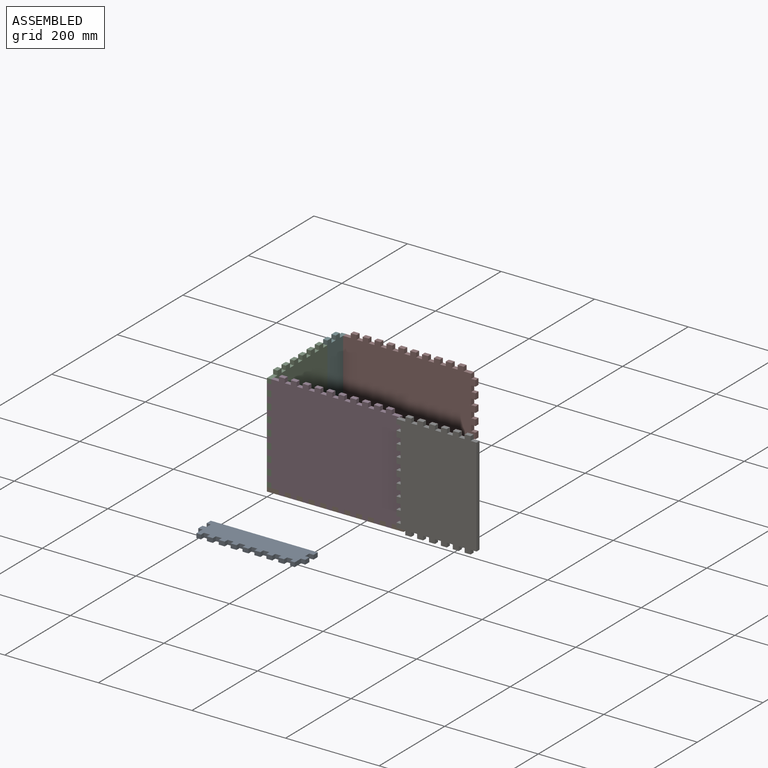
[diagram: assembled view]
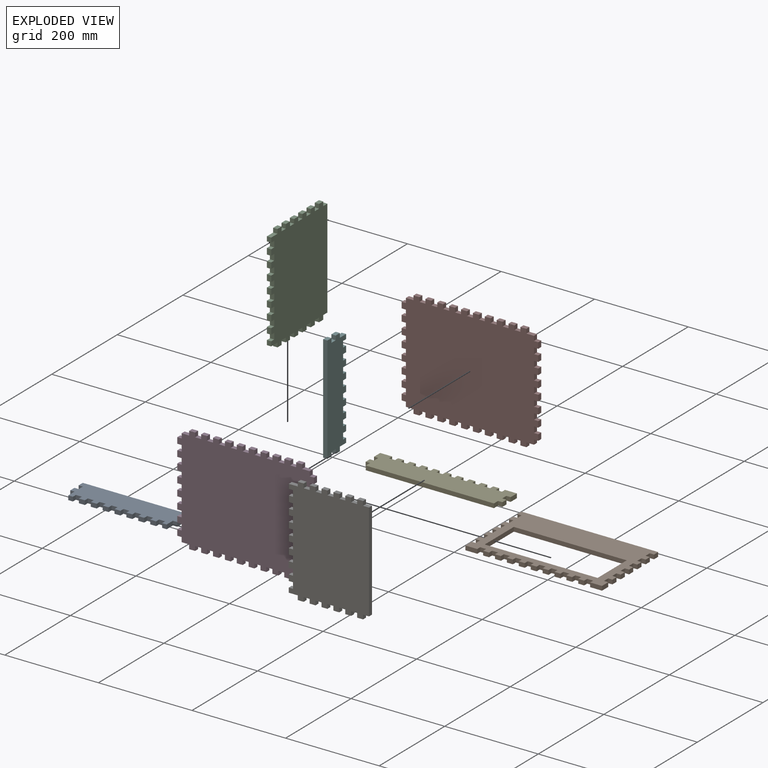
[diagram: exploded view]
GUIDED TOUR — MATED ASSEMBLY (Onshape document 99069a46d3f04be28202510d, AutoMate assembly 99069a46d3f04be28202510d_58bce84e35300e3a982a0659_56edbbd7e1614a08d394e60a_default)

This assembly has 8 components, labeled P0..P7 below (a component is one placed occurrence of a part; the same part can appear more than once), held together by 6 mates. A mate is a constraint between two components; its type names the relative motion it leaves free:
  FASTENED — locks the two components together rigidly (no relative motion).
Axis/direction vectors are unit vectors and 'through' points are millimeter coordinates, both in the assembly's world frame.

MATES
  1. FASTENED "Fastened 1": P4 <-> P1, direction (0.000, 0.000, 1.000) through (282.96, 171.45, 9.14) mm
  2. FASTENED "Fastened 7": P3 <-> P1, direction (0.000, 1.000, 0.000) through (266.70, 9.14, 0.00) mm
  3. FASTENED "Fastened 3": P2 <-> P1, direction (0.000, 0.000, -1.000) through (9.14, 19.05, 9.14) mm
  4. FASTENED "Fastened 5": P5 <-> P7, direction (0.000, 1.000, 0.000) through (9.14, 228.60, 9.14) mm
  5. FASTENED "Fastened 8": P3 <-> P6, direction (0.000, -1.000, 0.000) through (282.96, 0.00, 9.14) mm
  6. FASTENED "Fastened 4": P5 <-> P2, direction (-1.000, 0.000, 0.000) through (0.00, 171.45, 219.46) mm

ASSEMBLY ORDER
  1. P5 — the base component [order verified]
  2. P4 [order verified]
  3. P7 [order verified]
  4. P2 [order verified]
  5. P1 [order verified]
  6. P3 [order verified]
  7. P6 [order verified]
  8. P0 [order verified]
Order-tag legend:
  [order verified] — this step's position reverses a verified removal order: the component was checked to insert without passing through the ones already placed.

Of the 8 components, 2 carry the full construction recipe — the FeatureScript program that regenerates the part's solid from scratch; the rest are supplied as boundary geometry only.
Each toured component is shown spotlighted twice — in the assembled view, then in the exploded view, where a leader line traces a displaced component back to its assembled socket (saturated green if recipe-attached, orange if geometry-only; every other component desaturated gray) — followed by its recipe or geometry summary and the mates that hold it.
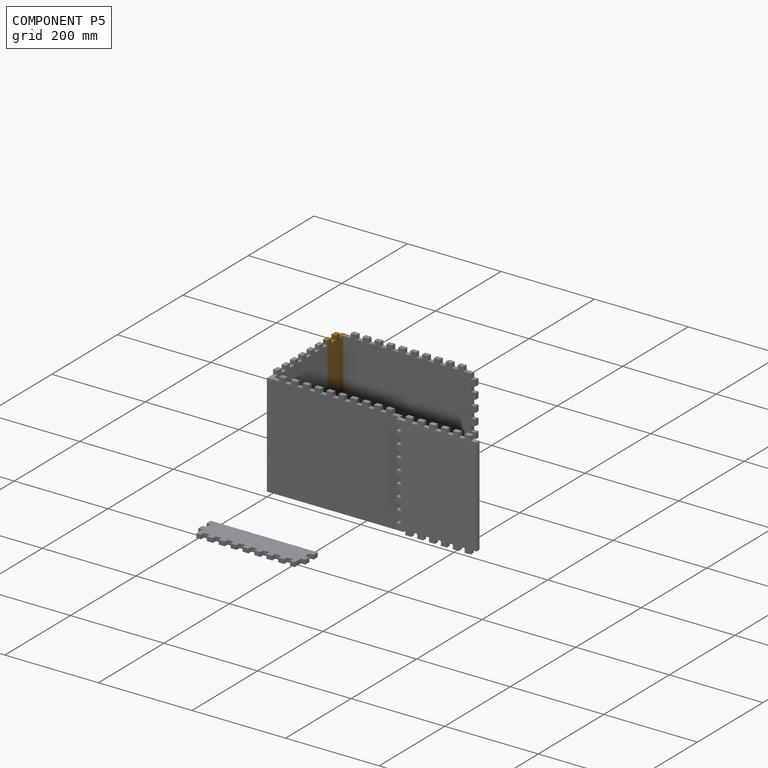
[diagram: component P5 — assembled]
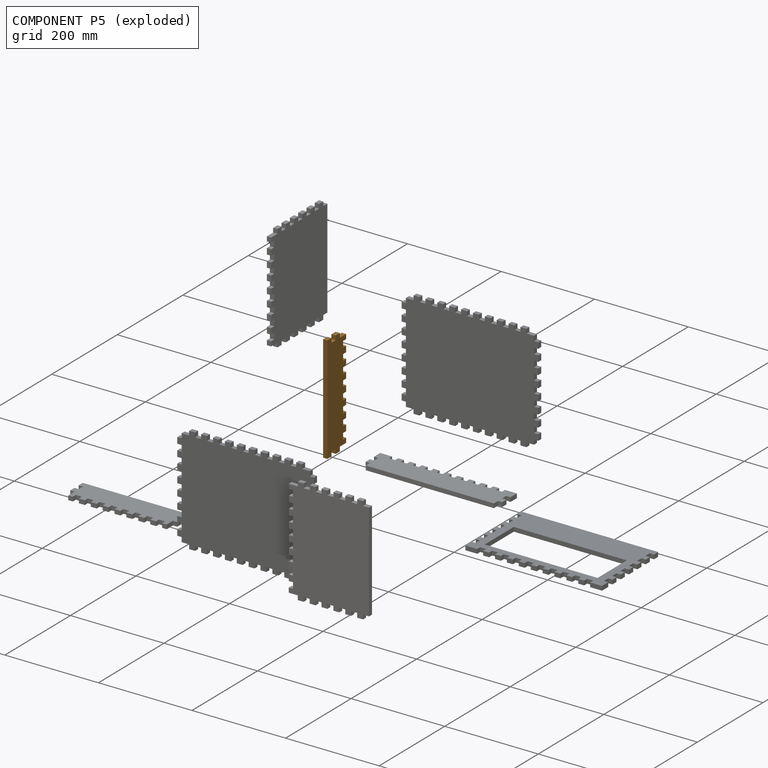
[diagram: component P5 — exploded]
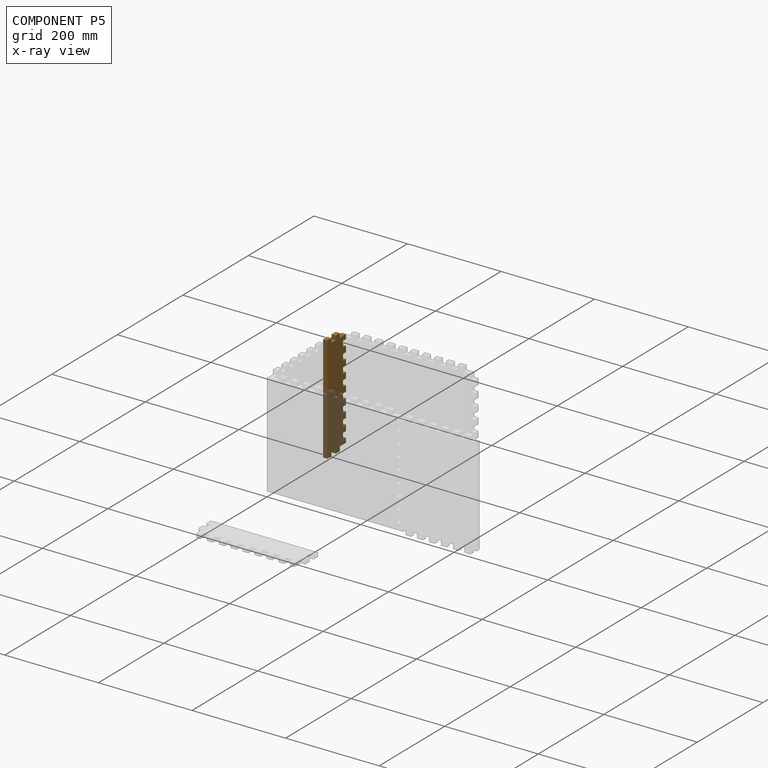
[diagram: component P5 — x-ray view]
COMPONENT P5 — geometry summary (no construction recipe available for this part):
  bounding box: 228.6 x 57.2 x 9.1 mm
  B-rep topology: 1 solid, 52 faces, 300 edges
  volume: 105657 mm^3 (88% of its bounding box)
  symmetry: 2-fold rotationally symmetric about the y axis; mirror-symmetric across its x mid-plane, z mid-plane
Held by: FASTENED mate "Fastened 5" to P7; FASTENED mate "Fastened 4" to P2.
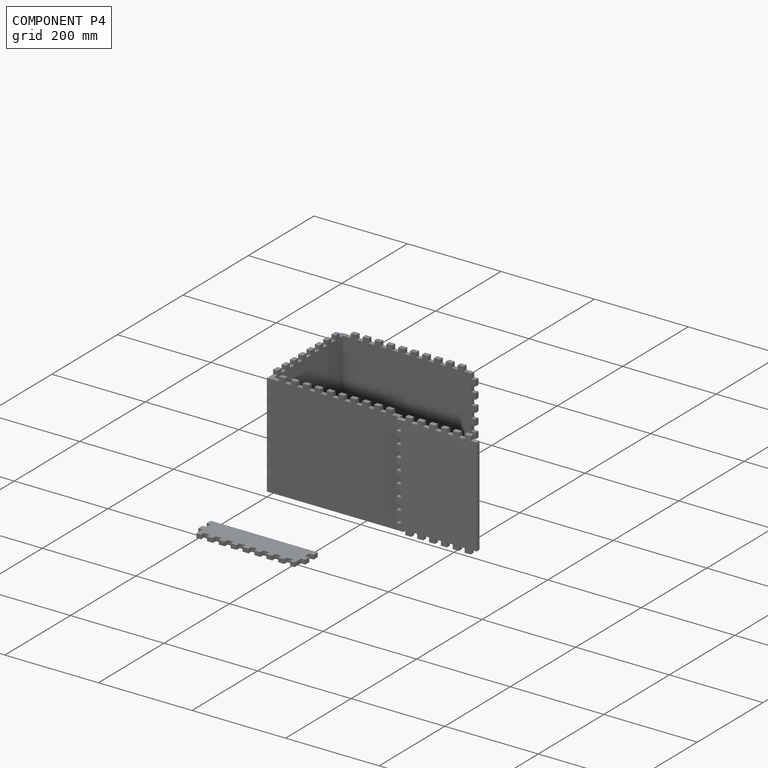
[diagram: component P4 — assembled]
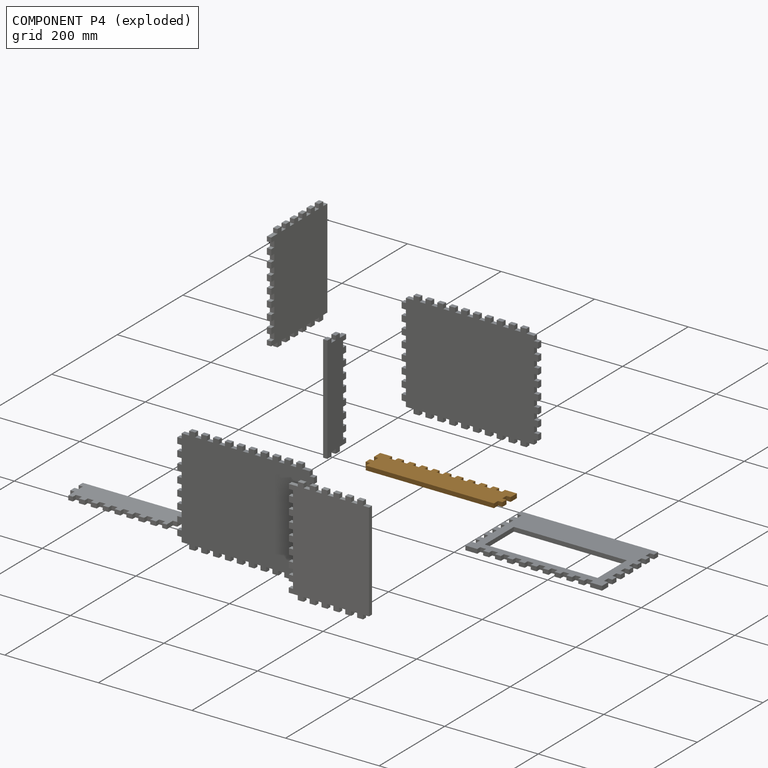
[diagram: component P4 — exploded]
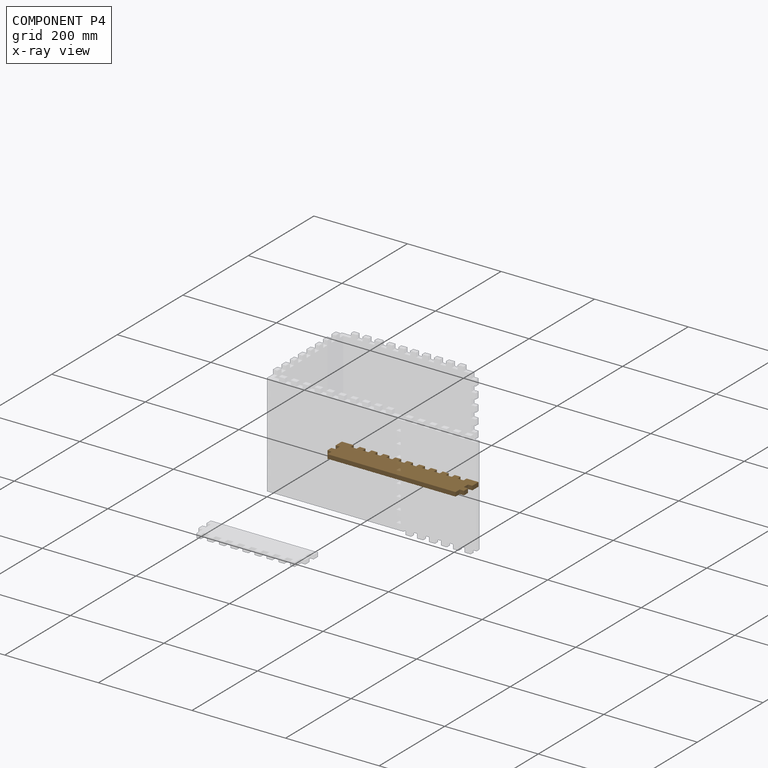
[diagram: component P4 — x-ray view]
COMPONENT P4 — geometry summary (no construction recipe available for this part):
  bounding box: 292.1 x 57.2 x 9.1 mm
  B-rep topology: 1 solid, 58 faces, 336 edges
  volume: 137779 mm^3 (90% of its bounding box)
  symmetry: 2-fold rotationally symmetric about the y axis; mirror-symmetric across its x mid-plane, z mid-plane
Held by: FASTENED mate "Fastened 1" to P1.
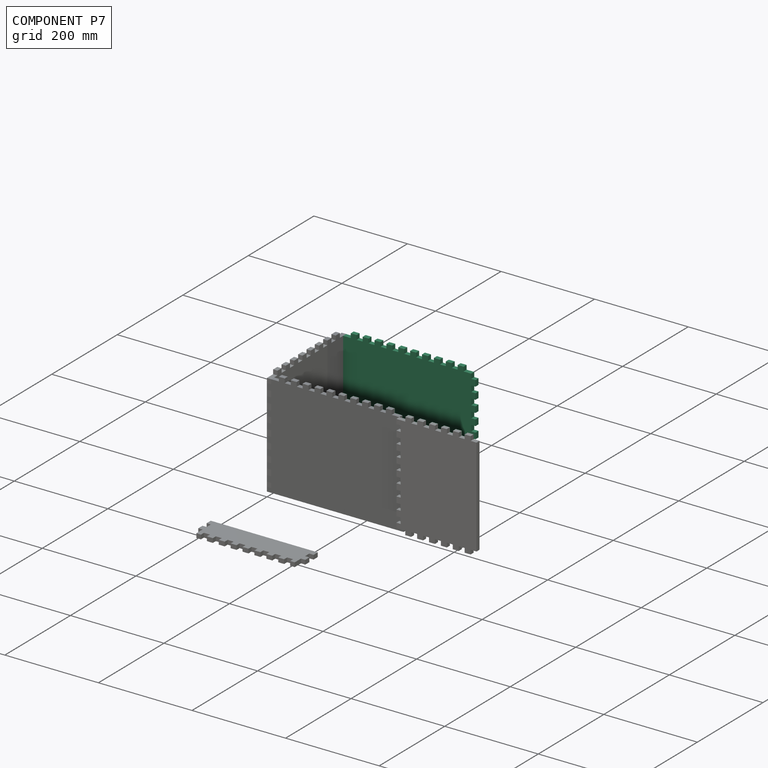
[diagram: component P7 — assembled]
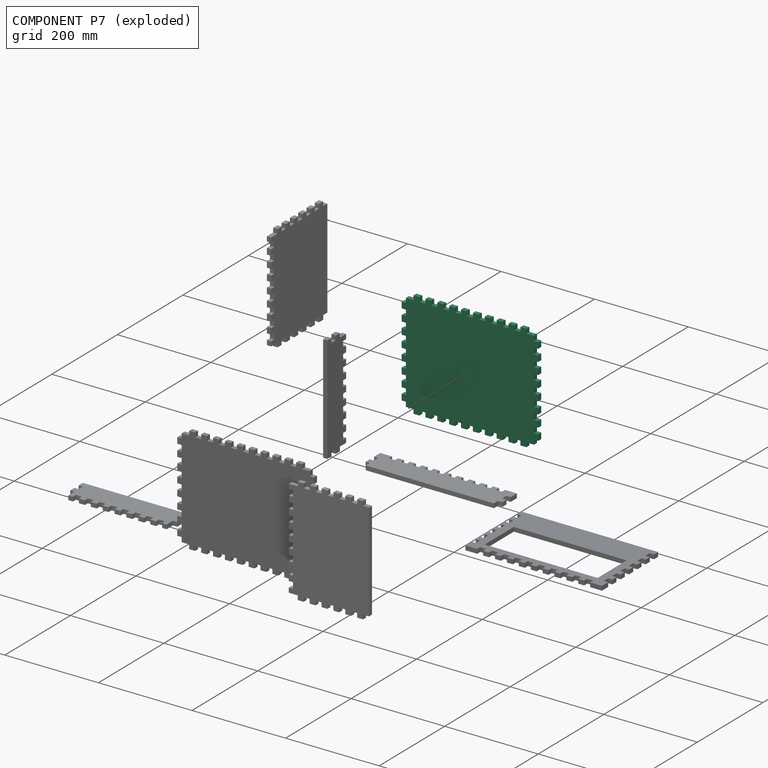
[diagram: component P7 — exploded]
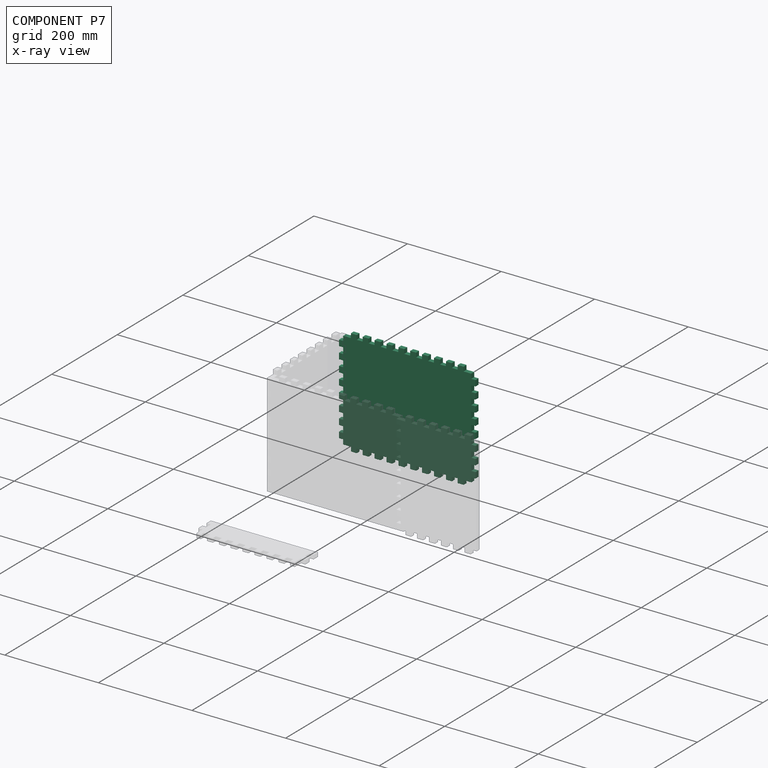
[diagram: component P7 — x-ray view]
COMPONENT P7 — same part as P3 (CADFS 00348971); its construction recipe is shown at P3.
Held by: FASTENED mate "Fastened 5" to P5.
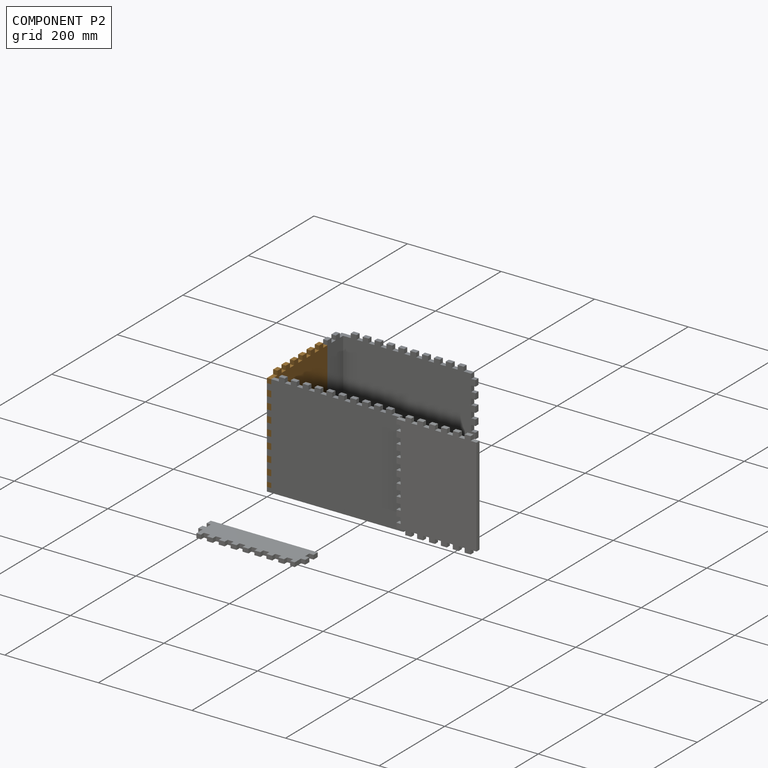
[diagram: component P2 — assembled]
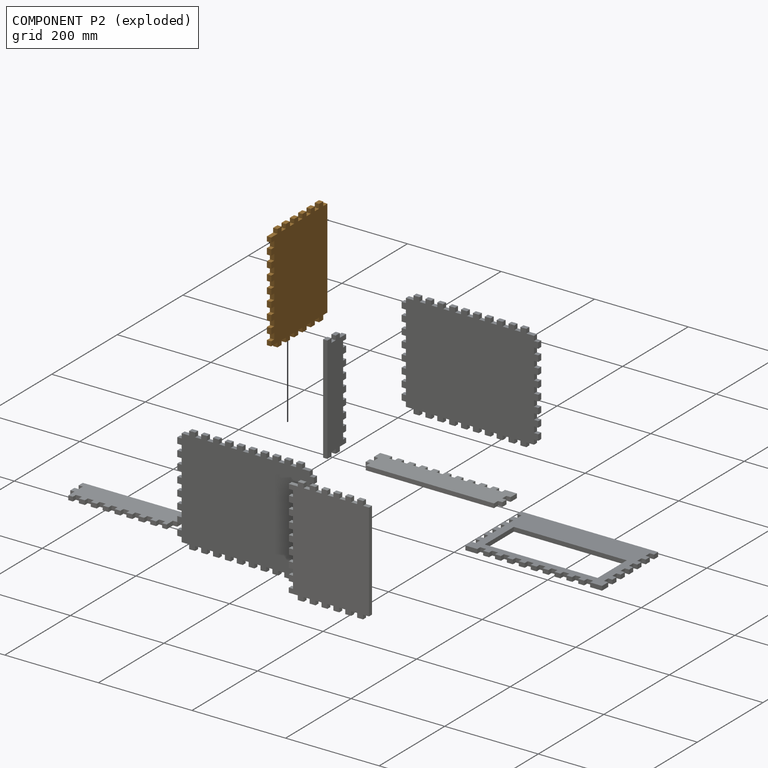
[diagram: component P2 — exploded]
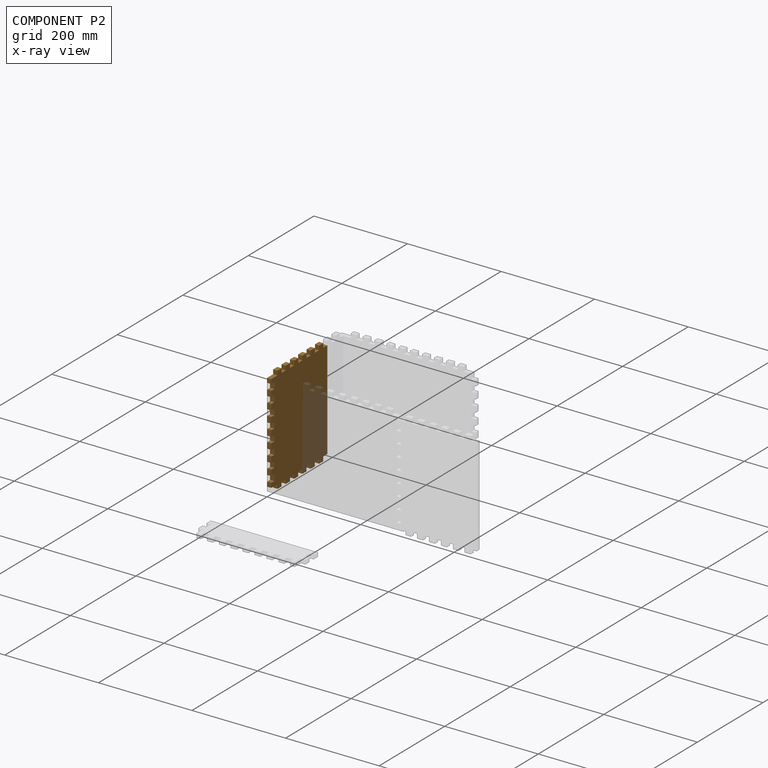
[diagram: component P2 — x-ray view]
COMPONENT P2 — geometry summary (no construction recipe available for this part):
  bounding box: 228.6 x 171.5 x 9.1 mm
  B-rep topology: 1 solid, 86 faces, 504 edges
  volume: 333962 mm^3 (93% of its bounding box)
  symmetry: 2-fold rotationally symmetric about the y axis; mirror-symmetric across its x mid-plane, z mid-plane
Held by: FASTENED mate "Fastened 3" to P1; FASTENED mate "Fastened 4" to P5.
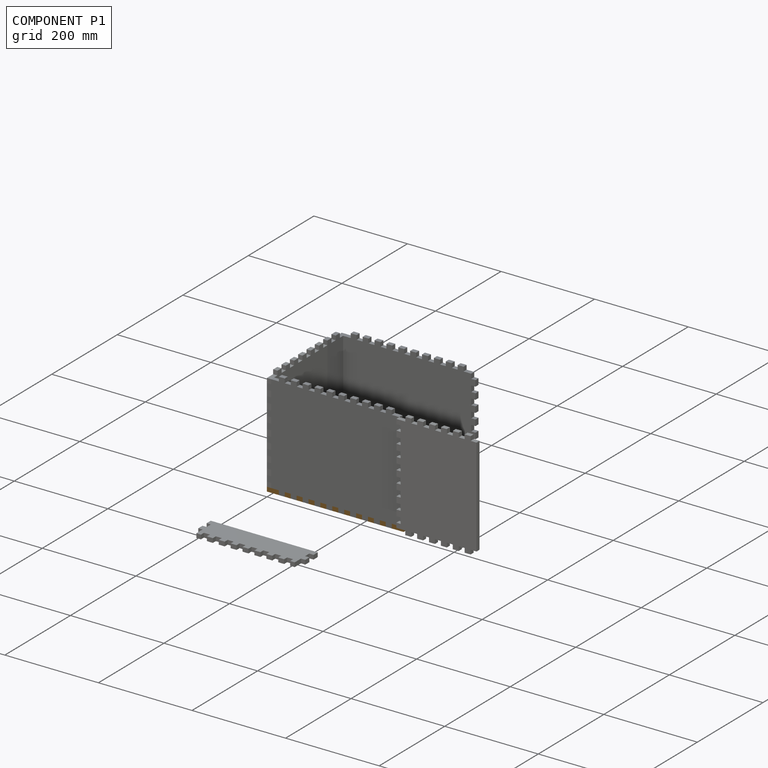
[diagram: component P1 — assembled]
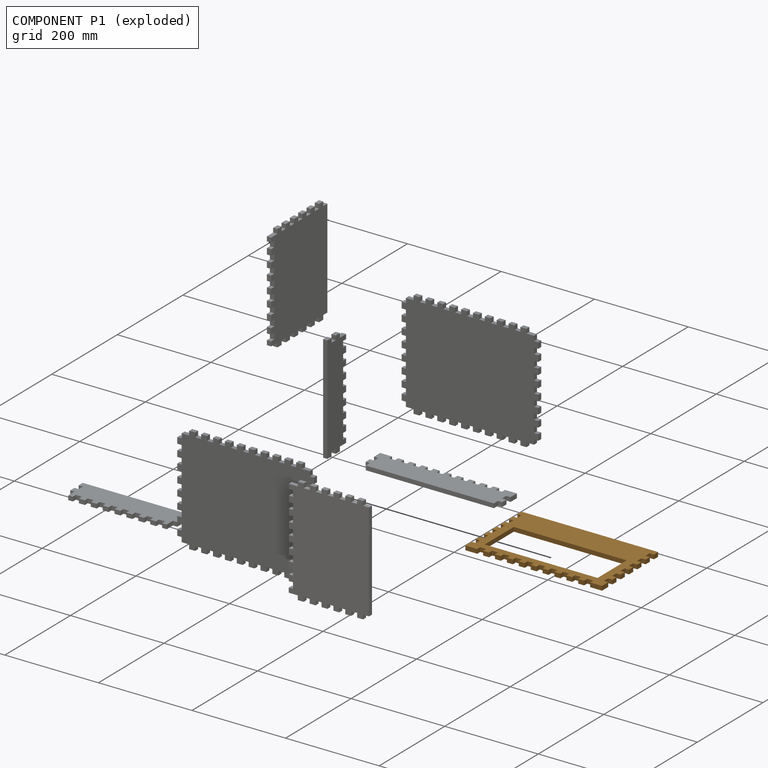
[diagram: component P1 — exploded]
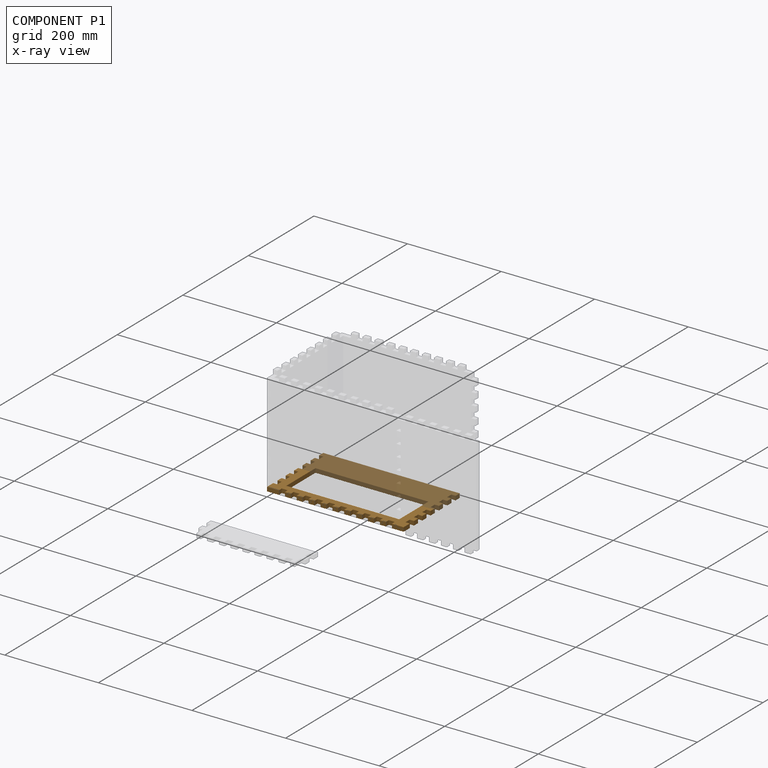
[diagram: component P1 — x-ray view]
COMPONENT P1 — geometry summary (no construction recipe available for this part):
  bounding box: 292.1 x 171.5 x 9.1 mm
  B-rep topology: 1 solid, 98 faces, 576 edges
  volume: 238422 mm^3 (52% of its bounding box)
  symmetry: 2-fold rotationally symmetric about the y axis; mirror-symmetric across its x mid-plane, z mid-plane
Held by: FASTENED mate "Fastened 1" to P4; FASTENED mate "Fastened 7" to P3; FASTENED mate "Fastened 3" to P2.
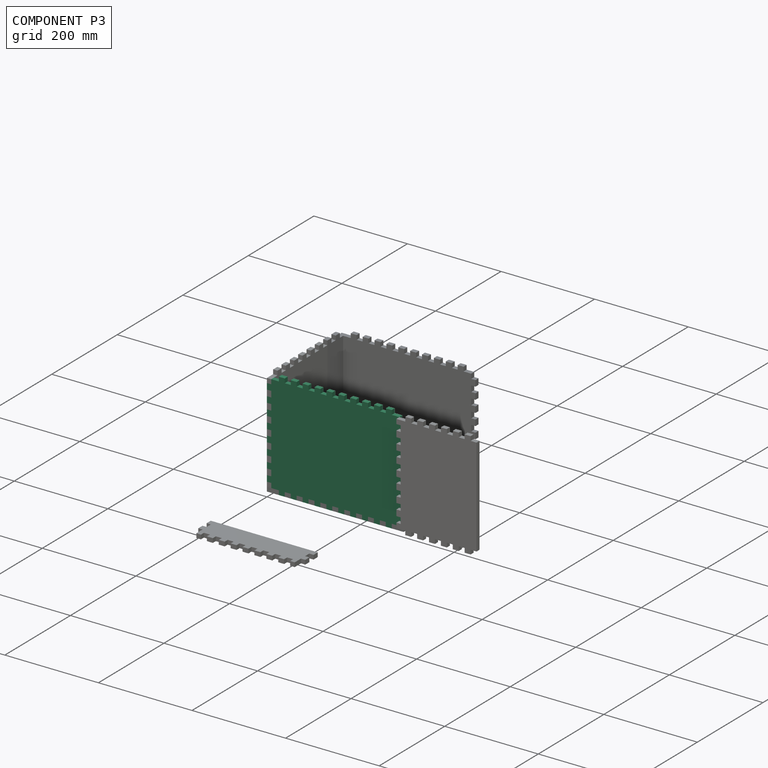
[diagram: component P3 — assembled]
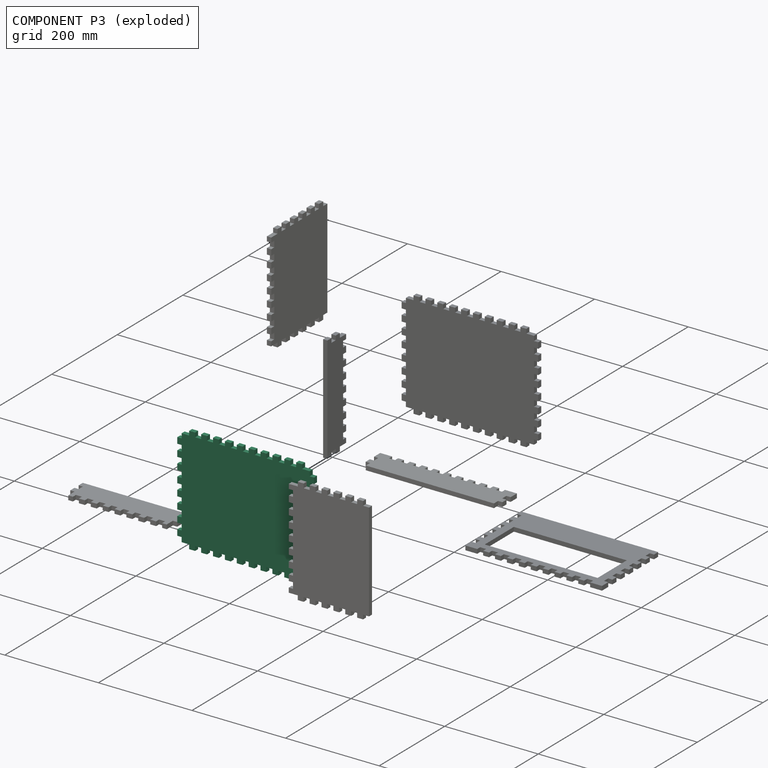
[diagram: component P3 — exploded]
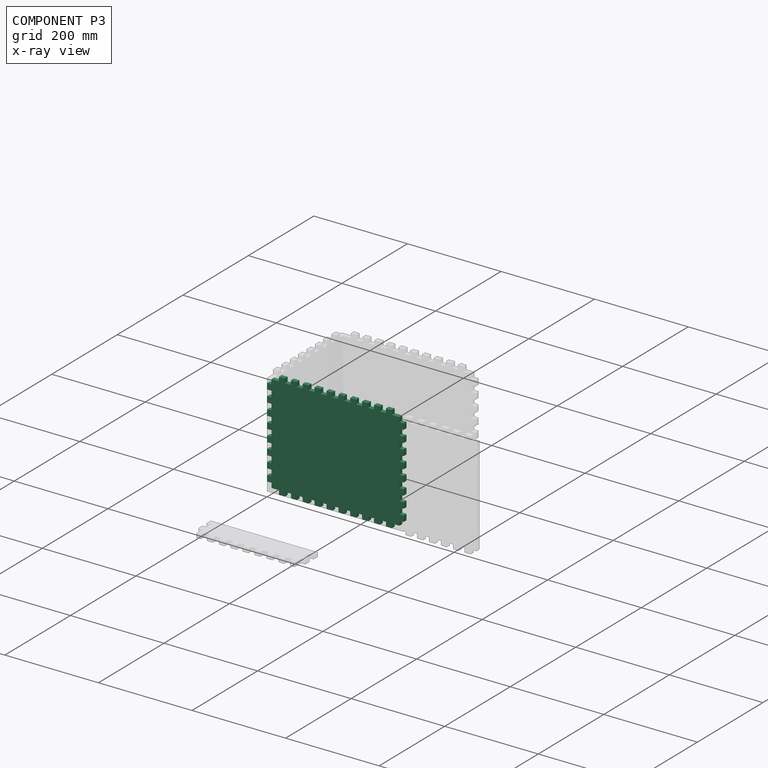
[diagram: component P3 — x-ray view]
COMPONENT P3 — recipe-attached (CADFS 00348971, mesh-verified: the recipe's output STEP matches this component's geometry to below the mesh-comparison resolution (tessellation chordal tolerance ~0.557 mm)).
Held by: FASTENED mate "Fastened 7" to P1; FASTENED mate "Fastened 8" to P6.
Construction recipe (FeatureScript — the CAD program that rebuilds this solid; sketch coordinates are in the units given by the * unit suffixes, e.g. mm):

FeatureScript 1511;
import(path : "onshape/std/geometry.fs", version : "1511.0");
import(path : "onshape/std/common.fs", version : "1511.0");
const mm = millimeter;
const VERTEX = EntityType.VERTEX;
const EDGE = EntityType.EDGE;
const FACE = EntityType.FACE;
const BODY = EntityType.BODY;
function v(x, y){return vector(x, y);}
function OD(order){return orderDisambiguation(order);}
function OSD(set){return originalSetDisambiguation(set);}
function TD(topology){return topologyDisambiguation(topology);}
function TDD(query){return trueDependencyDisambiguation(query);}
function sQuery(a, b, c) {return sketchEntityQuery(a, b, c);}

annotation { "Feature Type Name" : "Feature", "Feature Type Description" : "" }
export const myFeature = defineFeature(function(context is Context, id is Id, definition is map)
    precondition{}
    {
        {
            var Q0;
            Q0=qCreatedBy(makeId("Top.planeOp"),FACE);
            var sketch = newSketch(context, id + "F0", { "sketchPlane" : qUnion([Q0])});
            skLineSegment(sketch, "E0.bottom", {"start": v(0, 0) * mm, "end": v(25.4, 0) * mm, "construction": true});
            skLineSegment(sketch, "E1.bottom", {"start": v(9.14, -9.14) * mm, "end": v(25.4, -9.14) * mm});
            skLineSegment(sketch, "E1.left", {"start": v(9.14, -9.14) * mm, "end": v(9.14, -19.05) * mm});
            skLineSegment(sketch, "E2", {"start": v(9.14, -19.05) * mm, "end": v(0, -19.05) * mm});
            skLineSegment(sketch, "E3", {"start": v(25.4, -9.14) * mm, "end": v(25.4, 0) * mm});
            skLineSegment(sketch, "E4", {"start": v(38.1, 0) * mm, "end": v(38.1, -9.14) * mm});
            skLineSegment(sketch, "E5.0", {"start": v(50.8, 0) * mm, "end": v(50.8, -9.14) * mm});
            skLineSegment(sketch, "E6.0", {"start": v(63.5, 0) * mm, "end": v(63.5, -9.14) * mm});
            skLineSegment(sketch, "E7.0", {"start": v(76.2, 0) * mm, "end": v(76.2, -9.14) * mm});
            skLineSegment(sketch, "E8.0", {"start": v(88.9, 0) * mm, "end": v(88.9, -9.14) * mm});
            skLineSegment(sketch, "E9.0", {"start": v(101.6, 0) * mm, "end": v(101.6, -9.14) * mm});
            skLineSegment(sketch, "E10.0", {"start": v(114.3, 0) * mm, "end": v(114.3, -9.14) * mm});
            skLineSegment(sketch, "E11.0", {"start": v(127, 0) * mm, "end": v(127, -9.14) * mm});
            skLineSegment(sketch, "E12.0", {"start": v(139.7, 0) * mm, "end": v(139.7, -9.14) * mm});
            skLineSegment(sketch, "E13.trimOffspring", {"start": v(50.8, 0) * mm, "end": v(63.5, 0) * mm});
            skLineSegment(sketch, "E14.trimOffspring", {"start": v(63.5, -9.14) * mm, "end": v(76.2, -9.14) * mm});
            skLineSegment(sketch, "E15.trimOffspring", {"start": v(76.2, 0) * mm, "end": v(88.9, 0) * mm});
            skLineSegment(sketch, "E16.trimOffspring", {"start": v(88.9, -9.14) * mm, "end": v(101.6, -9.14) * mm});
            skLineSegment(sketch, "E17.trimOffspring", {"start": v(101.6, 0) * mm, "end": v(114.3, 0) * mm});
            skLineSegment(sketch, "E18.trimOffspring", {"start": v(114.3, -9.14) * mm, "end": v(127, -9.14) * mm});
            skLineSegment(sketch, "E19.trimOffspring", {"start": v(127, 0) * mm, "end": v(139.7, 0) * mm});
            skLineSegment(sketch, "E20.trimOffspring", {"start": v(139.7, -9.14) * mm, "end": v(146.05, -9.14) * mm});
            skLineSegment(sketch, "E21.trimOffspring", {"start": v(38.1, -9.14) * mm, "end": v(50.8, -9.14) * mm});
            skLineSegment(sketch, "E22", {"start": v(0, -31.75) * mm, "end": v(9.14, -31.75) * mm});
            skLineSegment(sketch, "E23", {"start": v(9.14, -31.75) * mm, "end": v(9.14, -44.45) * mm});
            skLineSegment(sketch, "E24", {"start": v(9.14, -44.45) * mm, "end": v(0, -44.45) * mm});
            skLineSegment(sketch, "E25.0", {"start": v(9.14, -57.15) * mm, "end": v(0, -57.15) * mm});
            skLineSegment(sketch, "E26.0", {"start": v(9.14, -69.85) * mm, "end": v(0, -69.85) * mm});
            skLineSegment(sketch, "E27.0", {"start": v(9.14, -82.55) * mm, "end": v(0, -82.55) * mm});
            skLineSegment(sketch, "E28.0", {"start": v(9.14, -95.25) * mm, "end": v(0, -95.25) * mm});
            skLineSegment(sketch, "E29.0", {"start": v(9.14, -107.95) * mm, "end": v(0, -107.95) * mm});
            skLineSegment(sketch, "E30.trimOffspring", {"start": v(0, -44.45) * mm, "end": v(0, -57.15) * mm});
            skLineSegment(sketch, "E31.trimOffspring", {"start": v(9.14, -57.15) * mm, "end": v(9.14, -69.85) * mm});
            skLineSegment(sketch, "E32.trimOffspring", {"start": v(0, -69.85) * mm, "end": v(0, -82.55) * mm});
            skLineSegment(sketch, "E33.trimOffspring", {"start": v(9.14, -82.55) * mm, "end": v(9.14, -95.25) * mm});
            skLineSegment(sketch, "E34.trimOffspring", {"start": v(0, -95.25) * mm, "end": v(0, -107.95) * mm});
            skLineSegment(sketch, "E35.trimOffspring", {"start": v(9.14, -107.95) * mm, "end": v(9.14, -114.3) * mm});
            skLineSegment(sketch, "E36", {"start": v(0, 0) * mm, "end": v(0, -19.05) * mm, "construction": true});
            skLineSegment(sketch, "E37", {"start": v(0, -19.05) * mm, "end": v(0, -31.75) * mm});
            skLineSegment(sketch, "E38", {"start": v(25.4, 0) * mm, "end": v(38.1, 0) * mm});
            skLineSegment(sketch, "E39", {"start": v(146.05, -9.14) * mm, "end": v(146.05, -114.3) * mm, "construction": true});
            skLineSegment(sketch, "E40", {"start": v(9.14, -114.3) * mm, "end": v(146.05, -114.3) * mm, "construction": true});
            skLineSegment(sketch, "E41.MirrorCS", {"start": v(9.14, -120.65) * mm, "end": v(9.14, -114.3) * mm});
            skLineSegment(sketch, "E42.MirrorCS", {"start": v(9.14, -120.65) * mm, "end": v(0, -120.65) * mm});
            skLineSegment(sketch, "E43.MirrorCS", {"start": v(0, -133.35) * mm, "end": v(0, -120.65) * mm});
            skLineSegment(sketch, "E44.MirrorCS", {"start": v(9.14, -133.35) * mm, "end": v(0, -133.35) * mm});
            skLineSegment(sketch, "E45.MirrorCS", {"start": v(9.14, -146.05) * mm, "end": v(9.14, -133.35) * mm});
            skLineSegment(sketch, "E46.MirrorCS", {"start": v(9.14, -146.05) * mm, "end": v(0, -146.05) * mm});
            skLineSegment(sketch, "E47.MirrorCS", {"start": v(0, -158.75) * mm, "end": v(0, -146.05) * mm});
            skLineSegment(sketch, "E48.MirrorCS", {"start": v(9.14, -158.75) * mm, "end": v(0, -158.75) * mm});
            skLineSegment(sketch, "E49.MirrorCS", {"start": v(9.14, -171.45) * mm, "end": v(9.14, -158.75) * mm});
            skLineSegment(sketch, "E50.MirrorCS", {"start": v(9.14, -171.45) * mm, "end": v(0, -171.45) * mm});
            skLineSegment(sketch, "E51.MirrorCS", {"start": v(0, -184.15) * mm, "end": v(0, -171.45) * mm});
            skLineSegment(sketch, "E52.MirrorCS", {"start": v(9.14, -184.15) * mm, "end": v(0, -184.15) * mm});
            skLineSegment(sketch, "E53.MirrorCS", {"start": v(9.14, -196.85) * mm, "end": v(9.14, -184.15) * mm});
            skLineSegment(sketch, "E54.MirrorCS", {"start": v(0, -196.85) * mm, "end": v(9.14, -196.85) * mm});
            skLineSegment(sketch, "E55.MirrorCS", {"start": v(0, -209.55) * mm, "end": v(0, -196.85) * mm});
            skLineSegment(sketch, "E56.MirrorCS", {"start": v(9.14, -209.55) * mm, "end": v(0, -209.55) * mm});
            skLineSegment(sketch, "E57.MirrorCS", {"start": v(9.14, -219.46) * mm, "end": v(9.14, -209.55) * mm});
            skLineSegment(sketch, "E58.MirrorCS", {"start": v(9.14, -219.46) * mm, "end": v(25.4, -219.46) * mm});
            skLineSegment(sketch, "E59.MirrorCS", {"start": v(25.4, -219.46) * mm, "end": v(25.4, -228.6) * mm});
            skLineSegment(sketch, "E60.MirrorCS", {"start": v(25.4, -228.6) * mm, "end": v(38.1, -228.6) * mm});
            skLineSegment(sketch, "E61.MirrorCS", {"start": v(38.1, -228.6) * mm, "end": v(38.1, -219.46) * mm});
            skLineSegment(sketch, "E62.MirrorCS", {"start": v(38.1, -219.46) * mm, "end": v(50.8, -219.46) * mm});
            skLineSegment(sketch, "E63.MirrorCS", {"start": v(50.8, -228.6) * mm, "end": v(50.8, -219.46) * mm});
            skLineSegment(sketch, "E64.MirrorCS", {"start": v(50.8, -228.6) * mm, "end": v(63.5, -228.6) * mm});
            skLineSegment(sketch, "E65.MirrorCS", {"start": v(63.5, -228.6) * mm, "end": v(63.5, -219.46) * mm});
            skLineSegment(sketch, "E66.MirrorCS", {"start": v(63.5, -219.46) * mm, "end": v(76.2, -219.46) * mm});
            skLineSegment(sketch, "E67.MirrorCS", {"start": v(76.2, -228.6) * mm, "end": v(76.2, -219.46) * mm});
            skLineSegment(sketch, "E68.MirrorCS", {"start": v(76.2, -228.6) * mm, "end": v(88.9, -228.6) * mm});
            skLineSegment(sketch, "E69.MirrorCS", {"start": v(88.9, -228.6) * mm, "end": v(88.9, -219.46) * mm});
            skLineSegment(sketch, "E70.MirrorCS", {"start": v(88.9, -219.46) * mm, "end": v(101.6, -219.46) * mm});
            skLineSegment(sketch, "E71.MirrorCS", {"start": v(101.6, -228.6) * mm, "end": v(101.6, -219.46) * mm});
            skLineSegment(sketch, "E72.MirrorCS", {"start": v(101.6, -228.6) * mm, "end": v(114.3, -228.6) * mm});
            skLineSegment(sketch, "E73.MirrorCS", {"start": v(114.3, -219.46) * mm, "end": v(127, -219.46) * mm});
            skLineSegment(sketch, "E74.MirrorCS", {"start": v(127, -228.6) * mm, "end": v(127, -219.46) * mm});
            skLineSegment(sketch, "E75.MirrorCS", {"start": v(127, -228.6) * mm, "end": v(139.7, -228.6) * mm});
            skLineSegment(sketch, "E76.MirrorCS", {"start": v(139.7, -228.6) * mm, "end": v(139.7, -219.46) * mm});
            skLineSegment(sketch, "E77.MirrorCS", {"start": v(139.7, -219.46) * mm, "end": v(146.05, -219.46) * mm});
            skLineSegment(sketch, "E78.MirrorCS", {"start": v(114.3, -228.6) * mm, "end": v(114.3, -219.46) * mm});
            skLineSegment(sketch, "E79.MirrorCS", {"start": v(152.4, -9.14) * mm, "end": v(146.05, -9.14) * mm});
            skLineSegment(sketch, "E80.MirrorCS", {"start": v(152.4, 0) * mm, "end": v(152.4, -9.14) * mm});
            skLineSegment(sketch, "E81.MirrorCS", {"start": v(165.1, 0) * mm, "end": v(152.4, 0) * mm});
            skLineSegment(sketch, "E82.MirrorCS", {"start": v(165.1, 0) * mm, "end": v(165.1, -9.14) * mm});
            skLineSegment(sketch, "E83.MirrorCS", {"start": v(177.8, -9.14) * mm, "end": v(165.1, -9.14) * mm});
            skLineSegment(sketch, "E84.MirrorCS", {"start": v(177.8, 0) * mm, "end": v(177.8, -9.14) * mm});
            skLineSegment(sketch, "E85.MirrorCS", {"start": v(190.5, 0) * mm, "end": v(177.8, 0) * mm});
            skLineSegment(sketch, "E86.MirrorCS", {"start": v(190.5, 0) * mm, "end": v(190.5, -9.14) * mm});
            skLineSegment(sketch, "E87.MirrorCS", {"start": v(203.2, -9.14) * mm, "end": v(190.5, -9.14) * mm});
            skLineSegment(sketch, "E88.MirrorCS", {"start": v(203.2, 0) * mm, "end": v(203.2, -9.14) * mm});
            skLineSegment(sketch, "E89.MirrorCS", {"start": v(215.9, 0) * mm, "end": v(203.2, 0) * mm});
            skLineSegment(sketch, "E90.MirrorCS", {"start": v(215.9, 0) * mm, "end": v(215.9, -9.14) * mm});
            skLineSegment(sketch, "E91.MirrorCS", {"start": v(228.6, -9.14) * mm, "end": v(215.9, -9.14) * mm});
            skLineSegment(sketch, "E92.MirrorCS", {"start": v(228.6, 0) * mm, "end": v(228.6, -9.14) * mm});
            skLineSegment(sketch, "E93.MirrorCS", {"start": v(241.3, 0) * mm, "end": v(228.6, 0) * mm});
            skLineSegment(sketch, "E94.MirrorCS", {"start": v(241.3, 0) * mm, "end": v(241.3, -9.14) * mm});
            skLineSegment(sketch, "E95.MirrorCS", {"start": v(254, -9.14) * mm, "end": v(241.3, -9.14) * mm});
            skLineSegment(sketch, "E96.MirrorCS", {"start": v(254, 0) * mm, "end": v(254, -9.14) * mm});
            skLineSegment(sketch, "E97.MirrorCS", {"start": v(266.7, 0) * mm, "end": v(254, 0) * mm});
            skLineSegment(sketch, "E98.MirrorCS", {"start": v(266.7, -9.14) * mm, "end": v(266.7, 0) * mm});
            skLineSegment(sketch, "E99.MirrorCS", {"start": v(282.96, -9.14) * mm, "end": v(266.7, -9.14) * mm});
            skLineSegment(sketch, "E100.MirrorCS", {"start": v(282.96, -31.75) * mm, "end": v(282.96, -44.45) * mm});
            skLineSegment(sketch, "E101.MirrorCS", {"start": v(282.96, -107.95) * mm, "end": v(282.96, -114.3) * mm});
            skLineSegment(sketch, "E102.MirrorCS", {"start": v(282.96, -120.65) * mm, "end": v(282.96, -114.3) * mm});
            skLineSegment(sketch, "E103.MirrorCS", {"start": v(292.1, -95.25) * mm, "end": v(292.1, -107.95) * mm});
            skLineSegment(sketch, "E104.MirrorCS", {"start": v(282.96, -171.45) * mm, "end": v(282.96, -158.75) * mm});
            skLineSegment(sketch, "E105.MirrorCS", {"start": v(282.96, -209.55) * mm, "end": v(292.1, -209.55) * mm});
            skLineSegment(sketch, "E106.MirrorCS", {"start": v(282.96, -57.15) * mm, "end": v(292.1, -57.15) * mm});
            skLineSegment(sketch, "E107.MirrorCS", {"start": v(282.96, -196.85) * mm, "end": v(282.96, -184.15) * mm});
            skLineSegment(sketch, "E108.MirrorCS", {"start": v(292.1, -31.75) * mm, "end": v(282.96, -31.75) * mm});
            skLineSegment(sketch, "E109.MirrorCS", {"start": v(292.1, -44.45) * mm, "end": v(292.1, -57.15) * mm});
            skLineSegment(sketch, "E110.MirrorCS", {"start": v(282.96, -82.55) * mm, "end": v(292.1, -82.55) * mm});
            skLineSegment(sketch, "E111.MirrorCS", {"start": v(282.96, -44.45) * mm, "end": v(292.1, -44.45) * mm});
            skLineSegment(sketch, "E112.MirrorCS", {"start": v(292.1, -133.35) * mm, "end": v(292.1, -120.65) * mm});
            skLineSegment(sketch, "E113.MirrorCS", {"start": v(282.96, -146.05) * mm, "end": v(282.96, -133.35) * mm});
            skLineSegment(sketch, "E114.MirrorCS", {"start": v(282.96, -19.05) * mm, "end": v(292.1, -19.05) * mm});
            skLineSegment(sketch, "E115.MirrorCS", {"start": v(282.96, -95.25) * mm, "end": v(292.1, -95.25) * mm});
            skLineSegment(sketch, "E116.MirrorCS", {"start": v(292.1, -196.85) * mm, "end": v(282.96, -196.85) * mm});
            skLineSegment(sketch, "E117.MirrorCS", {"start": v(292.1, -158.75) * mm, "end": v(292.1, -146.05) * mm});
            skLineSegment(sketch, "E118.MirrorCS", {"start": v(282.96, -107.95) * mm, "end": v(292.1, -107.95) * mm});
            skLineSegment(sketch, "E119.MirrorCS", {"start": v(282.96, -69.85) * mm, "end": v(292.1, -69.85) * mm});
            skLineSegment(sketch, "E120.MirrorCS", {"start": v(292.1, -184.15) * mm, "end": v(292.1, -171.45) * mm});
            skLineSegment(sketch, "E121.MirrorCS", {"start": v(282.96, -184.15) * mm, "end": v(292.1, -184.15) * mm});
            skLineSegment(sketch, "E122.MirrorCS", {"start": v(292.1, -69.85) * mm, "end": v(292.1, -82.55) * mm});
            skLineSegment(sketch, "E123.MirrorCS", {"start": v(282.96, -158.75) * mm, "end": v(292.1, -158.75) * mm});
            skLineSegment(sketch, "E124.MirrorCS", {"start": v(282.96, -120.65) * mm, "end": v(292.1, -120.65) * mm});
            skLineSegment(sketch, "E125.MirrorCS", {"start": v(282.96, -146.05) * mm, "end": v(292.1, -146.05) * mm});
            skLineSegment(sketch, "E126.MirrorCS", {"start": v(292.1, -19.05) * mm, "end": v(292.1, -31.75) * mm});
            skLineSegment(sketch, "E127.MirrorCS", {"start": v(282.96, -171.45) * mm, "end": v(292.1, -171.45) * mm});
            skLineSegment(sketch, "E128.MirrorCS", {"start": v(282.96, -82.55) * mm, "end": v(282.96, -95.25) * mm});
            skLineSegment(sketch, "E129.MirrorCS", {"start": v(292.1, -209.55) * mm, "end": v(292.1, -196.85) * mm});
            skLineSegment(sketch, "E130.MirrorCS", {"start": v(282.96, -133.35) * mm, "end": v(292.1, -133.35) * mm});
            skLineSegment(sketch, "E131.MirrorCS", {"start": v(282.96, -57.15) * mm, "end": v(282.96, -69.85) * mm});
            skLineSegment(sketch, "E132", {"start": v(282.96, -9.14) * mm, "end": v(282.96, -19.05) * mm});
            skLineSegment(sketch, "E133.MirrorCS", {"start": v(254, -228.6) * mm, "end": v(254, -219.46) * mm});
            skLineSegment(sketch, "E134.MirrorCS", {"start": v(190.5, -228.6) * mm, "end": v(190.5, -219.46) * mm});
            skLineSegment(sketch, "E135.MirrorCS", {"start": v(241.3, -228.6) * mm, "end": v(241.3, -219.46) * mm});
            skLineSegment(sketch, "E136.MirrorCS", {"start": v(177.8, -228.6) * mm, "end": v(177.8, -219.46) * mm});
            skLineSegment(sketch, "E137.MirrorCS", {"start": v(215.9, -228.6) * mm, "end": v(203.2, -228.6) * mm});
            skLineSegment(sketch, "E138.MirrorCS", {"start": v(190.5, -228.6) * mm, "end": v(177.8, -228.6) * mm});
            skLineSegment(sketch, "E139.MirrorCS", {"start": v(203.2, -228.6) * mm, "end": v(203.2, -219.46) * mm});
            skLineSegment(sketch, "E140.MirrorCS", {"start": v(228.6, -228.6) * mm, "end": v(228.6, -219.46) * mm});
            skLineSegment(sketch, "E141.MirrorCS", {"start": v(165.1, -228.6) * mm, "end": v(165.1, -219.46) * mm});
            skLineSegment(sketch, "E142.MirrorCS", {"start": v(266.7, -219.46) * mm, "end": v(266.7, -228.6) * mm});
            skLineSegment(sketch, "E143.MirrorCS", {"start": v(215.9, -228.6) * mm, "end": v(215.9, -219.46) * mm});
            skLineSegment(sketch, "E144.MirrorCS", {"start": v(266.7, -228.6) * mm, "end": v(254, -228.6) * mm});
            skLineSegment(sketch, "E145.MirrorCS", {"start": v(241.3, -228.6) * mm, "end": v(228.6, -228.6) * mm});
            skLineSegment(sketch, "E146.MirrorCS", {"start": v(228.6, -219.46) * mm, "end": v(215.9, -219.46) * mm});
            skLineSegment(sketch, "E147.MirrorCS", {"start": v(254, -219.46) * mm, "end": v(241.3, -219.46) * mm});
            skLineSegment(sketch, "E148.MirrorCS", {"start": v(177.8, -219.46) * mm, "end": v(165.1, -219.46) * mm});
            skLineSegment(sketch, "E149.MirrorCS", {"start": v(203.2, -219.46) * mm, "end": v(190.5, -219.46) * mm});
            skLineSegment(sketch, "E150.MirrorCS", {"start": v(282.96, -219.46) * mm, "end": v(266.7, -219.46) * mm});
            skLineSegment(sketch, "E151.MirrorCS", {"start": v(282.96, -219.46) * mm, "end": v(282.96, -209.55) * mm});
            skLineSegment(sketch, "E152.MirrorCS", {"start": v(152.4, -228.6) * mm, "end": v(152.4, -219.46) * mm});
            skLineSegment(sketch, "E153.MirrorCS", {"start": v(152.4, -219.46) * mm, "end": v(146.05, -219.46) * mm});
            skLineSegment(sketch, "E154", {"start": v(152.4, -228.6) * mm, "end": v(165.1, -228.6) * mm});
            skSolve(sketch);
        }
        {
            var Q0;
            Q0=makeQuery(id+"F0.imprint","IMPRINT",FACE,{"disambiguationData":[TD([[makeQuery(id+"F0.imprint","IMPRINT",EDGE,{"derivedFrom":sQuery(id+"F0.wireOp",EDGE,"E1.bottom")}),-1.0]])]});
            extrude(context, id + "F1", {"entities" : qUnion([Q0]), "depth" : 9.14 * mm});
        }
    });
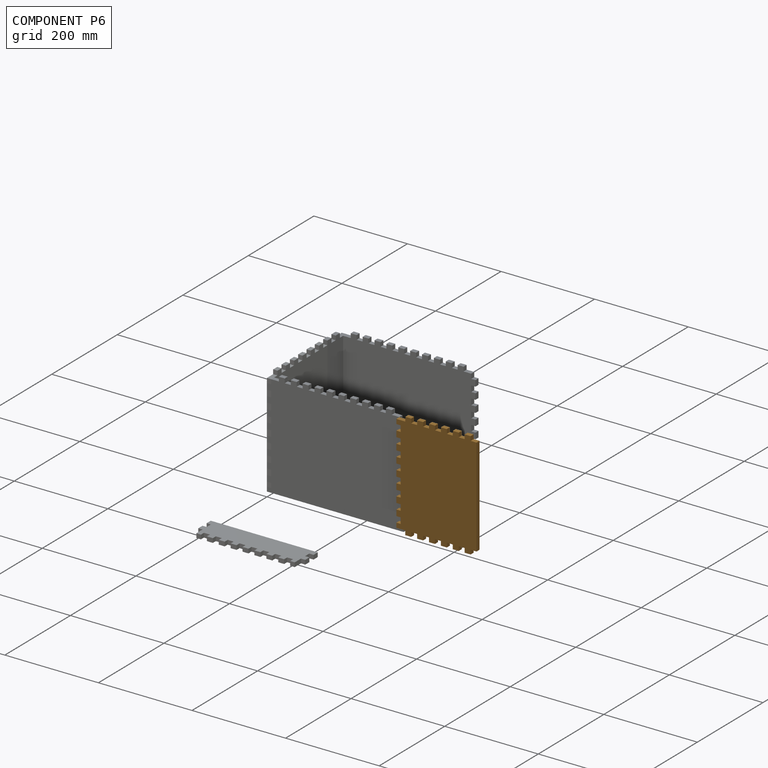
[diagram: component P6 — assembled]
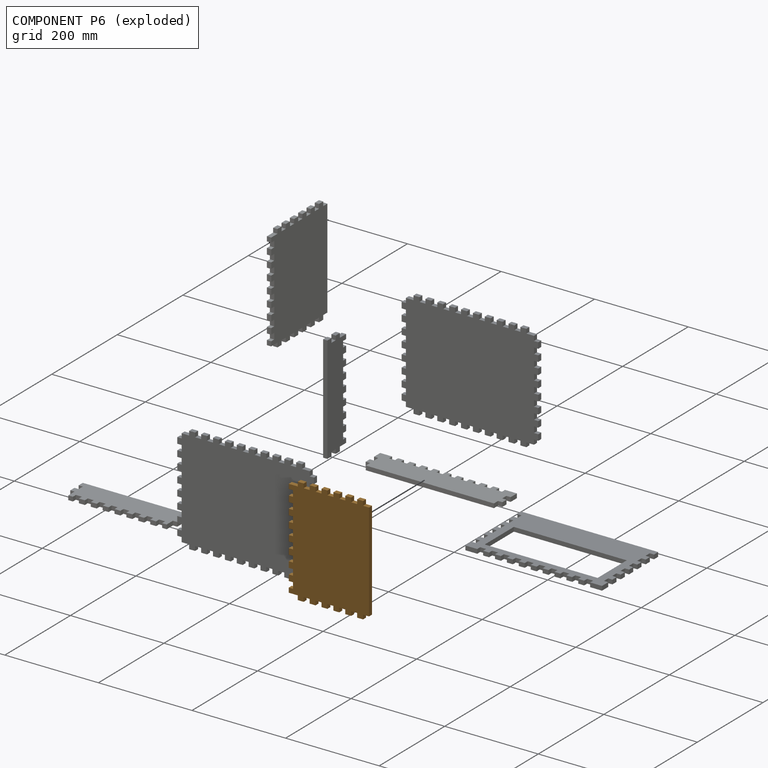
[diagram: component P6 — exploded]
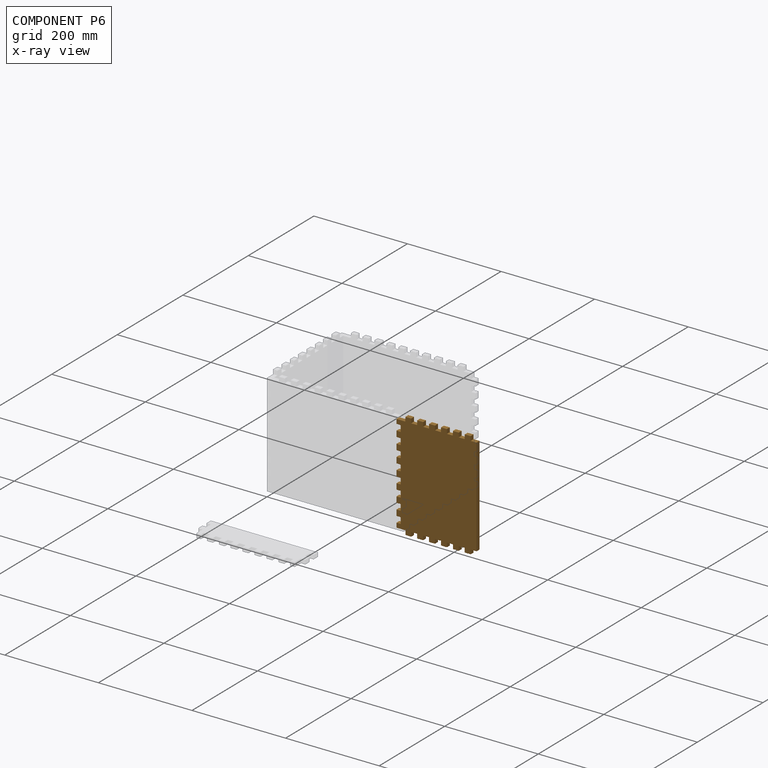
[diagram: component P6 — x-ray view]
COMPONENT P6 — geometry summary (no construction recipe available for this part):
  bounding box: 228.6 x 171.5 x 9.1 mm
  B-rep topology: 1 solid, 86 faces, 504 edges
  volume: 333962 mm^3 (93% of its bounding box)
  symmetry: 2-fold rotationally symmetric about the y axis; mirror-symmetric across its x mid-plane, z mid-plane
Held by: FASTENED mate "Fastened 8" to P3.
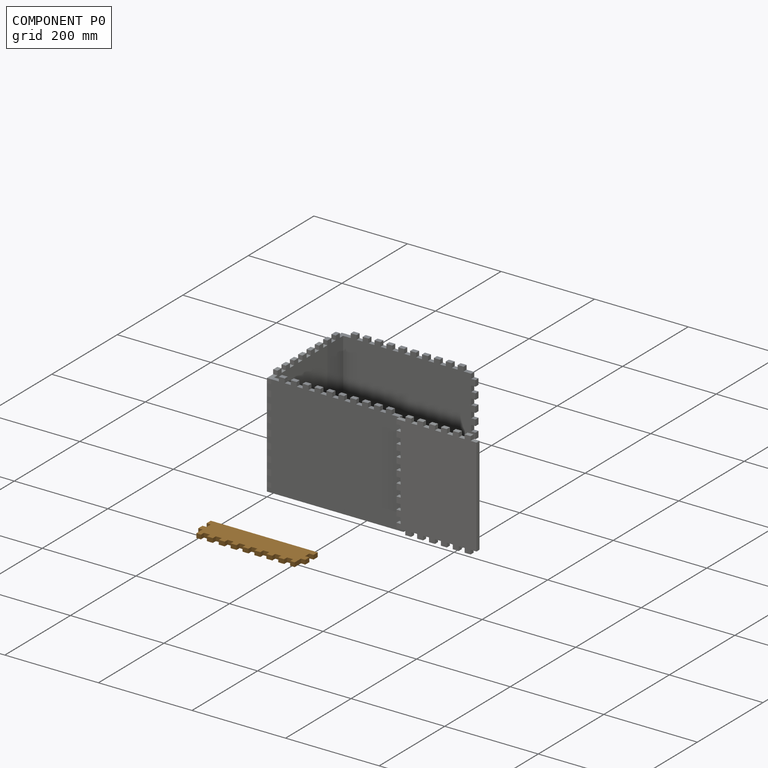
[diagram: component P0 — assembled]
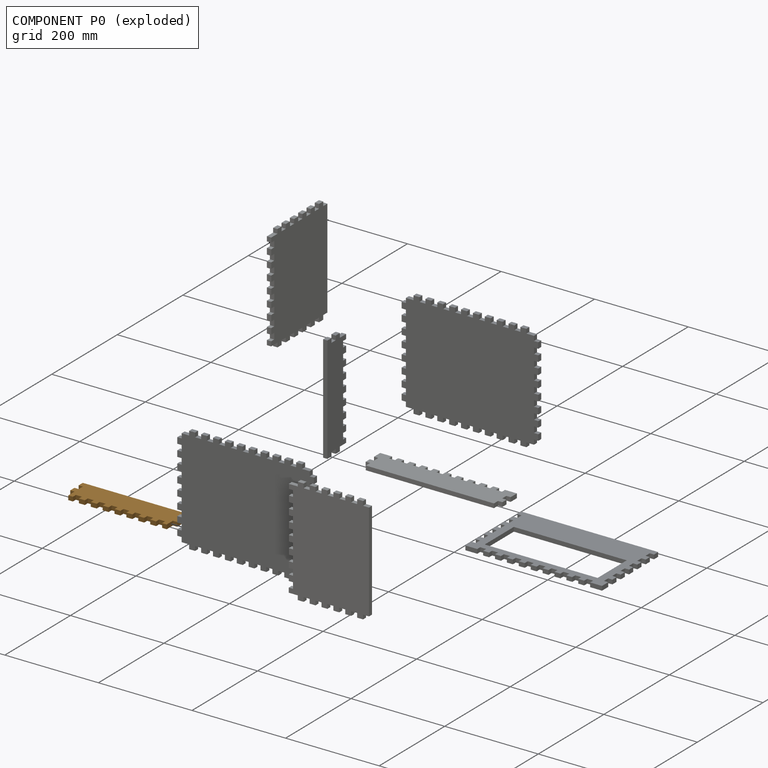
[diagram: component P0 — exploded]
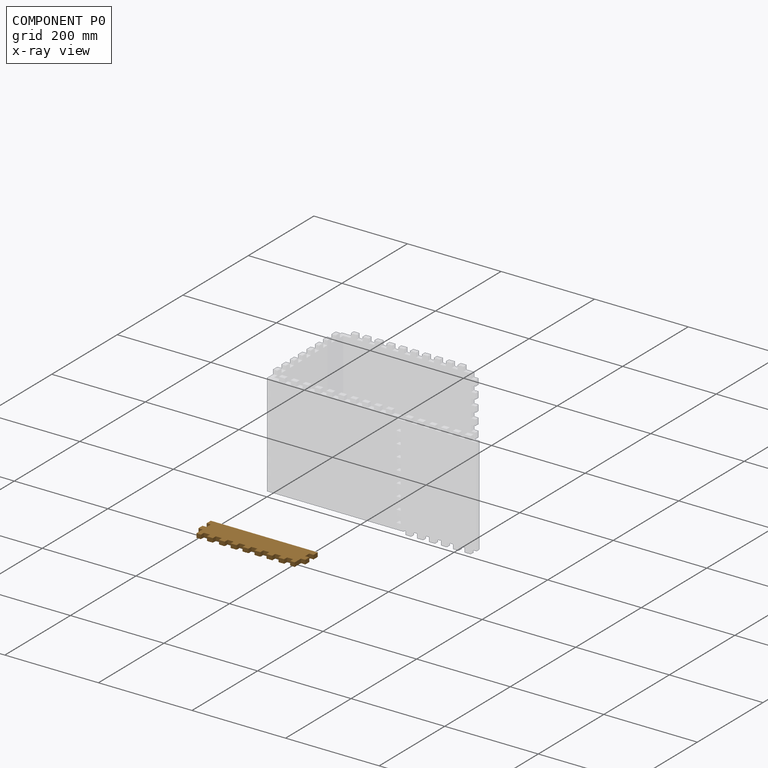
[diagram: component P0 — x-ray view]
COMPONENT P0 — geometry summary (no construction recipe available for this part):
  bounding box: 228.6 x 57.2 x 9.1 mm
  B-rep topology: 1 solid, 52 faces, 300 edges
  volume: 105657 mm^3 (88% of its bounding box)
  symmetry: 2-fold rotationally symmetric about the y axis; mirror-symmetric across its x mid-plane, z mid-plane
Held by: no mates (free).
PROVENANCE & LICENSES
Assembly (occurrences, transforms, mates, per-part STEP geometry): AutoMate dataset, Zenodo record 7776208, CC0.
Construction recipes: CADFS (HuggingFace VladPyatov/CADFS, CC-BY-4.0, layered over the ABC dataset), FeatureScript reconstruction programs keyed by ABC model id.
Join: ABC meta listings map ABC model id -> Onshape documentId; within a shared document, parts are matched by geometric signature (bounding-box dims + volume at 0.1% relative tolerance, exact B-rep face/solid counts).
Verification: 2 of this assembly's 8 components carry a recipe attachment, and every attachment is mesh-verified: the CADFS STEP and the AutoMate member STEP were compared as meshes in their shared local frame (symmetric sampled-point-to-mesh distance); worst across the 2 attachments: below the mesh-comparison resolution (tessellation chordal tolerance ~0.557 mm) on a 371 mm part.
Renders: orthographic iso camera (az 35 / el 25); the floor grid conveys scale (grid pitch printed in each image; no ruler). In the exploded view each component is displaced by its stored offset vector: the offsets alone carry the explosion direction (mate normal/axis signs are not orientation cues and do not encode it), and separation distances are assigned per mate-chain, not proportionally to assembly-order depth.
